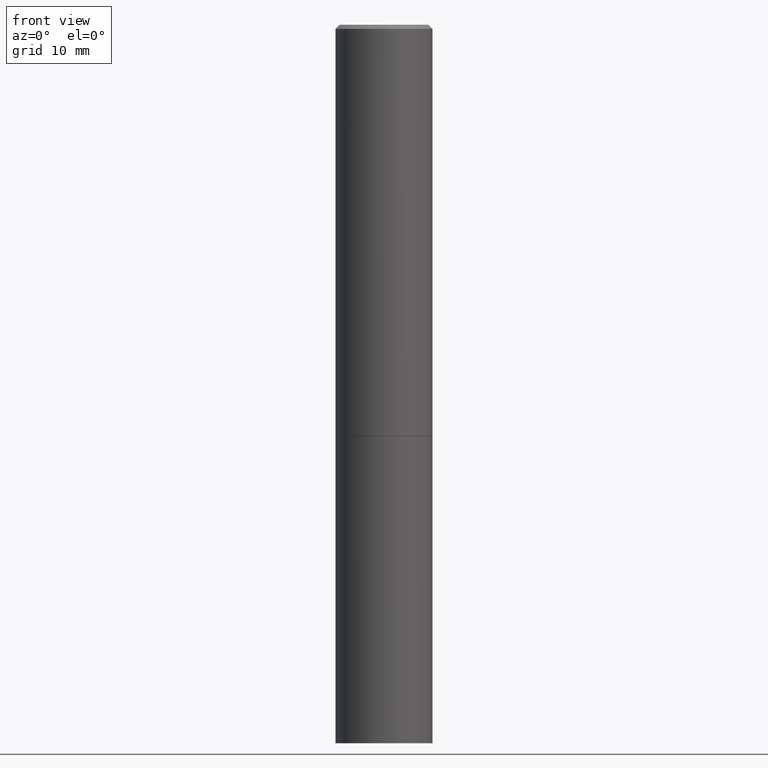
[diagram: clean part render]
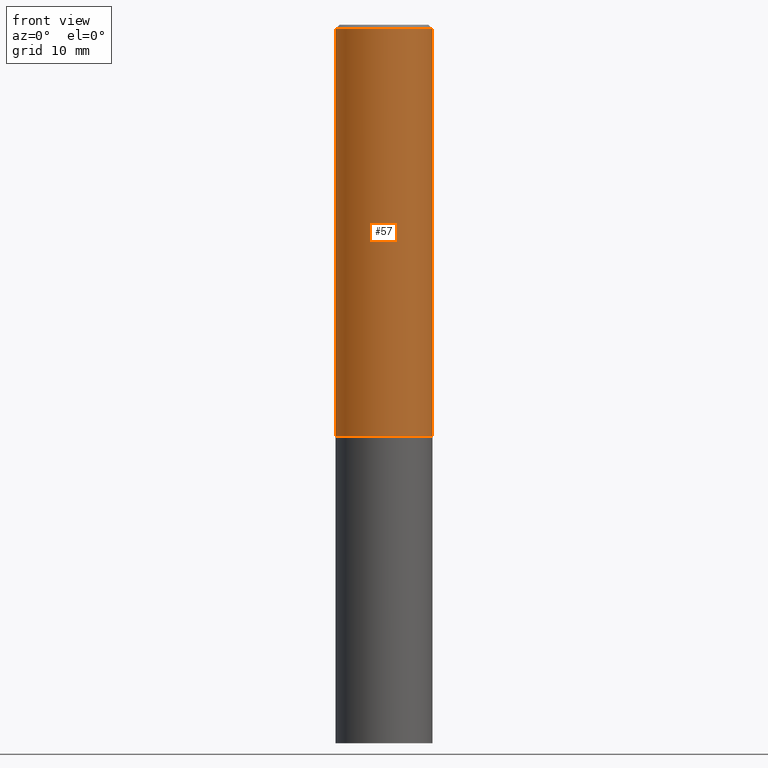
[diagram: same view with one face highlighted and labeled with its STEP entity id]
A machine part, front view. The second image highlights one B-rep face of the part: STEP entity #57.
In plain terms, the highlighted cylindrical surface (partial cylindrical patch) has radius 5.9995 mm, axis along (-0, 0, 1).
Its self-contained STEP definition (entity closure, byte-faithful):
#18 = CARTESIAN_POINT ( 'NONE',  ( -0.2362000000000000210, -1.859965246918283512E-15, -2.006799999999999695 ) ) ;
#40 = CIRCLE ( 'NONE', #283, 0.2361999999999997157 ) ;
#49 = VECTOR ( 'NONE', #103, 39.37007874015748143 ) ;
#57 = ADVANCED_FACE ( 'NONE', ( #268 ), #351, .T. ) ;
#61 = EDGE_CURVE ( 'NONE', #262, #281, #176, .T. ) ;
#62 = CARTESIAN_POINT ( 'NONE',  ( 0.2361999999999997157, -1.690279253850496996E-15, -0.02000000000000003164 ) ) ;
#69 = VERTEX_POINT ( 'NONE', #62 ) ;
#73 = LINE ( 'NONE', #298, #49 ) ;
#79 = AXIS2_PLACEMENT_3D ( 'NONE', #104, #188, #303 ) ;
#92 = DIRECTION ( 'NONE',  ( -2.445468806185136877E-29, 3.491481338843145188E-15, 1.000000000000000000 ) ) ;
#100 = CARTESIAN_POINT ( 'NONE',  ( 4.890937612370280165E-31, -6.982962677686301470E-17, -0.02000000000000003164 ) ) ;
#103 = DIRECTION ( 'NONE',  ( -2.445468806185136877E-29, 3.491481338843145188E-15, 1.000000000000000000 ) ) ;
#104 = CARTESIAN_POINT ( 'NONE',  ( 4.907566800252331482E-29, -7.006704750790423614E-15, -2.006799999999999695 ) ) ;
#151 = DIRECTION ( 'NONE',  ( -2.445468806185136597E-29, 3.491481338843145583E-15, 1.000000000000000000 ) ) ;
#176 = LINE ( 'NONE', #320, #178 ) ;
#178 = VECTOR ( 'NONE', #92, 39.37007874015748143 ) ;
#181 = CARTESIAN_POINT ( 'NONE',  ( 0.000000000000000000, 0.000000000000000000, 0.000000000000000000 ) ) ;
#186 = CARTESIAN_POINT ( 'NONE',  ( -0.2361999999999997157, 1.579546157692631255E-15, -0.02000000000000003164 ) ) ;
#188 = DIRECTION ( 'NONE',  ( -2.445468806185136597E-29, 3.491481338843145583E-15, 1.000000000000000000 ) ) ;
#192 = ORIENTED_EDGE ( 'NONE', *, *, #234, .T. ) ;
#203 = EDGE_CURVE ( 'NONE', #281, #69, #40, .T. ) ;
#208 = DIRECTION ( 'NONE',  ( 1.000000000000000000, -6.982962677686266711E-15, 4.876176775795935793E-29 ) ) ;
#227 = ORIENTED_EDGE ( 'NONE', *, *, #203, .F. ) ;
#230 = AXIS2_PLACEMENT_3D ( 'NONE', #181, #151, #208 ) ;
#234 = EDGE_CURVE ( 'NONE', #262, #279, #252, .T. ) ;
#237 = ORIENTED_EDGE ( 'NONE', *, *, #302, .T. ) ;
#246 = DIRECTION ( 'NONE',  ( 1.000000000000000000, -6.982962677686266711E-15, 0.000000000000000000 ) ) ;
#252 = CIRCLE ( 'NONE', #79, 0.2361999999999999933 ) ;
#262 = VERTEX_POINT ( 'NONE', #18 ) ;
#268 = FACE_OUTER_BOUND ( 'NONE', #338, .T. ) ;
#279 = VERTEX_POINT ( 'NONE', #300 ) ;
#281 = VERTEX_POINT ( 'NONE', #186 ) ;
#283 = AXIS2_PLACEMENT_3D ( 'NONE', #100, #358, #246 ) ;
#286 = ORIENTED_EDGE ( 'NONE', *, *, #61, .F. ) ;
#298 = CARTESIAN_POINT ( 'NONE',  ( 0.2361999999999998545, -1.649375784469495145E-15, 1.151752954442999387E-29 ) ) ;
#300 = CARTESIAN_POINT ( 'NONE',  ( 0.2361999999999999933, -8.656080535259919350E-15, -2.006799999999999695 ) ) ;
#302 = EDGE_CURVE ( 'NONE', #279, #69, #73, .T. ) ;
#303 = DIRECTION ( 'NONE',  ( 1.000000000000000000, -6.982962677686265133E-15, 0.000000000000000000 ) ) ;
#320 = CARTESIAN_POINT ( 'NONE',  ( -0.2361999999999998545, 1.678301941865355605E-15, -1.161852468318208056E-29 ) ) ;
#338 = EDGE_LOOP ( 'NONE', ( #286, #192, #237, #227 ) ) ;
#351 = CYLINDRICAL_SURFACE ( 'NONE', #230, 0.2361999999999998545 ) ;
#358 = DIRECTION ( 'NONE',  ( -2.445468806185136597E-29, 3.491481338843145583E-15, 1.000000000000000000 ) ) ;